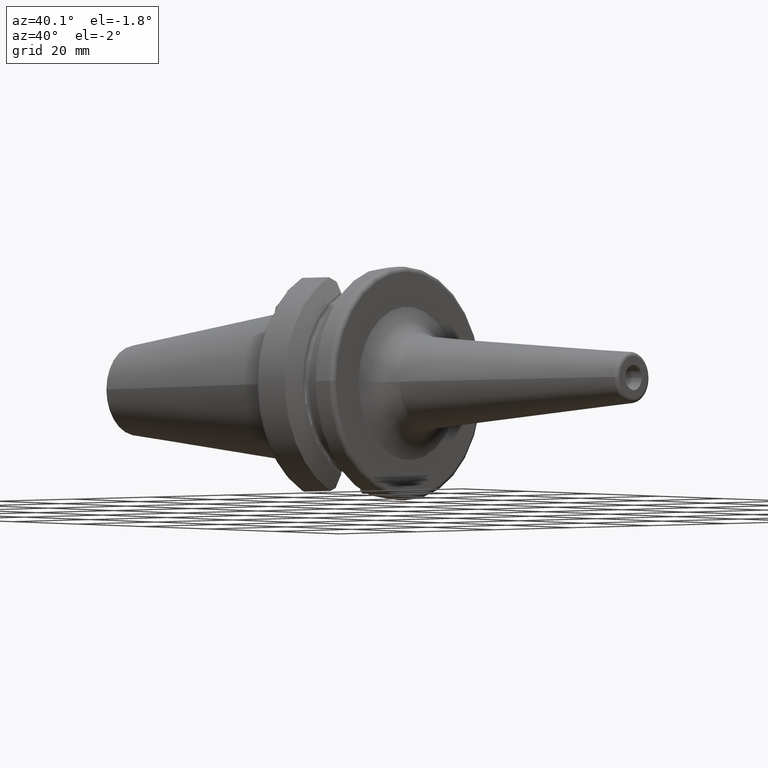
[diagram: clean part render]
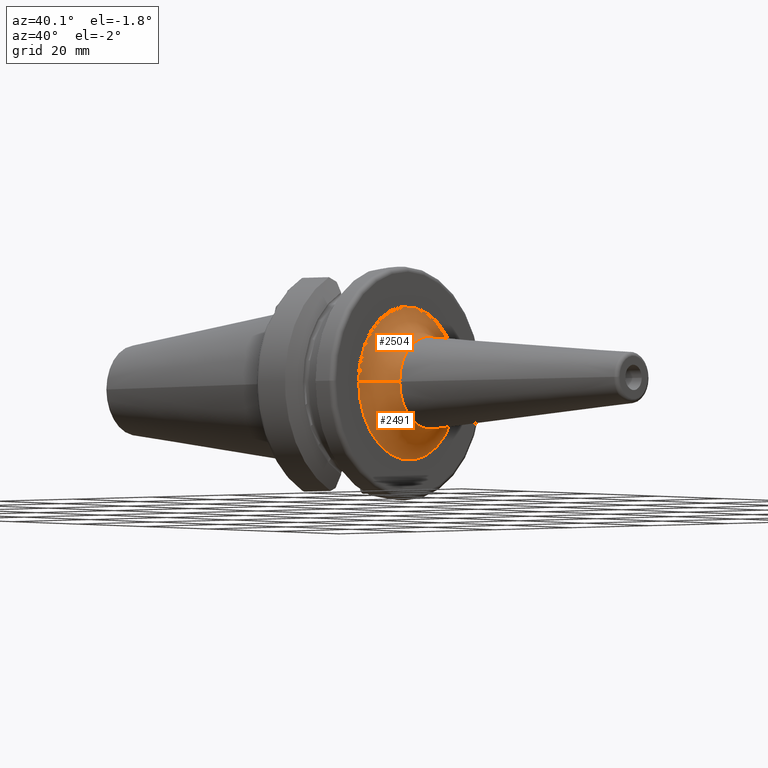
[diagram: same view with one multi-face feature highlighted, each face labeled with its STEP entity id]
A machine part, auxiliary view. The highlighted faces form ONE feature: a constant-radius fillet chain: 2 tangent blend faces with common blend radius 6 mm. The faces share edges in the B-rep.
Their STEP definitions:
[1] entity #2491 (Torus):
#822=CARTESIAN_POINT('',(2.2E1,0.E0,0.E0));
#823=DIRECTION('',(1.E0,0.E0,0.E0));
#824=DIRECTION('',(0.E0,-1.E0,0.E0));
#825=AXIS2_PLACEMENT_3D('',#822,#823,#824);
#832=CARTESIAN_POINT('',(2.8E1,-1.511104194578E1,6.128836327335E-11));
#833=DIRECTION('',(0.E0,-4.055863284114E-12,-1.E0));
#834=DIRECTION('',(-1.E0,6.255736669421E-13,0.E0));
#835=AXIS2_PLACEMENT_3D('',#832,#833,#834);
#837=CARTESIAN_POINT('',(2.8E1,1.511104194578E1,-6.128991758558E-11));
#838=DIRECTION('',(0.E0,4.055967367522E-12,1.E0));
#839=DIRECTION('',(-1.E0,-6.264618453618E-13,0.E0));
#840=AXIS2_PLACEMENT_3D('',#837,#838,#839);
#871=CARTESIAN_POINT('',(2.752924542563E1,0.E0,0.E0));
#872=DIRECTION('',(1.E0,0.E0,0.E0));
#873=DIRECTION('',(0.E0,-1.E0,0.E0));
#874=AXIS2_PLACEMENT_3D('',#871,#872,#873);
#1373=CARTESIAN_POINT('',(2.2E1,-1.511104194578E1,0.E0));
#1374=CARTESIAN_POINT('',(2.2E1,1.511104194578E1,0.E0));
#1375=VERTEX_POINT('',#1373);
#1376=VERTEX_POINT('',#1374);
#1377=CARTESIAN_POINT('',(2.752924542563E1,-9.129537943378E0,0.E0));
#1378=CARTESIAN_POINT('',(2.752924542563E1,9.129537943378E0,0.E0));
#1379=VERTEX_POINT('',#1377);
#1380=VERTEX_POINT('',#1378);
#2477=CARTESIAN_POINT('',(2.8E1,0.E0,0.E0));
#2478=DIRECTION('',(1.E0,0.E0,0.E0));
#2479=DIRECTION('',(0.E0,-9.997770832186E-1,2.111359445900E-2));
#2480=AXIS2_PLACEMENT_3D('',#2477,#2478,#2479);
#2481=TOROIDAL_SURFACE('',#2480,1.511104194578E1,6.E0);
#2482=ORIENTED_EDGE('',*,*,#2470,.F.);
#2484=ORIENTED_EDGE('',*,*,#2483,.T.);
#2486=ORIENTED_EDGE('',*,*,#2485,.T.);
#2488=ORIENTED_EDGE('',*,*,#2487,.F.);
#2489=EDGE_LOOP('',(#2482,#2484,#2486,#2488));
#2490=FACE_OUTER_BOUND('',#2489,.F.);
#2491=ADVANCED_FACE('',(#2490),#2481,.F.);
#826=CIRCLE('',#825,1.511104194578E1);
#836=CIRCLE('',#835,6.E0);
#841=CIRCLE('',#840,6.E0);
#875=CIRCLE('',#874,9.129537943378E0);
#2470=EDGE_CURVE('',#1375,#1376,#826,.T.);
#2483=EDGE_CURVE('',#1375,#1379,#836,.T.);
#2485=EDGE_CURVE('',#1379,#1380,#875,.T.);
#2487=EDGE_CURVE('',#1376,#1380,#841,.T.);
[2] entity #2504 (Torus):
#827=CARTESIAN_POINT('',(2.2E1,0.E0,0.E0));
#828=DIRECTION('',(1.E0,0.E0,0.E0));
#829=DIRECTION('',(0.E0,1.E0,0.E0));
#830=AXIS2_PLACEMENT_3D('',#827,#828,#829);
#832=CARTESIAN_POINT('',(2.8E1,-1.511104194578E1,6.128836327335E-11));
#833=DIRECTION('',(0.E0,-4.055863284114E-12,-1.E0));
#834=DIRECTION('',(-1.E0,6.255736669421E-13,0.E0));
#835=AXIS2_PLACEMENT_3D('',#832,#833,#834);
#837=CARTESIAN_POINT('',(2.8E1,1.511104194578E1,-6.128991758558E-11));
#838=DIRECTION('',(0.E0,4.055967367522E-12,1.E0));
#839=DIRECTION('',(-1.E0,-6.264618453618E-13,0.E0));
#840=AXIS2_PLACEMENT_3D('',#837,#838,#839);
#847=CARTESIAN_POINT('',(2.752924542563E1,0.E0,0.E0));
#848=DIRECTION('',(1.E0,0.E0,0.E0));
#849=DIRECTION('',(0.E0,1.E0,0.E0));
#850=AXIS2_PLACEMENT_3D('',#847,#848,#849);
#1373=CARTESIAN_POINT('',(2.2E1,-1.511104194578E1,0.E0));
#1374=CARTESIAN_POINT('',(2.2E1,1.511104194578E1,0.E0));
#1375=VERTEX_POINT('',#1373);
#1376=VERTEX_POINT('',#1374);
#1377=CARTESIAN_POINT('',(2.752924542563E1,-9.129537943378E0,0.E0));
#1378=CARTESIAN_POINT('',(2.752924542563E1,9.129537943378E0,0.E0));
#1379=VERTEX_POINT('',#1377);
#1380=VERTEX_POINT('',#1378);
#2492=CARTESIAN_POINT('',(2.8E1,0.E0,0.E0));
#2493=DIRECTION('',(1.E0,0.E0,0.E0));
#2494=DIRECTION('',(0.E0,9.997770832186E-1,-2.111359445900E-2));
#2495=AXIS2_PLACEMENT_3D('',#2492,#2493,#2494);
#2496=TOROIDAL_SURFACE('',#2495,1.511104194578E1,6.E0);
#2497=ORIENTED_EDGE('',*,*,#2472,.F.);
#2498=ORIENTED_EDGE('',*,*,#2487,.T.);
#2500=ORIENTED_EDGE('',*,*,#2499,.T.);
#2501=ORIENTED_EDGE('',*,*,#2483,.F.);
#2502=EDGE_LOOP('',(#2497,#2498,#2500,#2501));
#2503=FACE_OUTER_BOUND('',#2502,.F.);
#2504=ADVANCED_FACE('',(#2503),#2496,.F.);
#831=CIRCLE('',#830,1.511104194578E1);
#836=CIRCLE('',#835,6.E0);
#841=CIRCLE('',#840,6.E0);
#851=CIRCLE('',#850,9.129537943378E0);
#2472=EDGE_CURVE('',#1376,#1375,#831,.T.);
#2483=EDGE_CURVE('',#1375,#1379,#836,.T.);
#2487=EDGE_CURVE('',#1376,#1380,#841,.T.);
#2499=EDGE_CURVE('',#1380,#1379,#851,.T.);